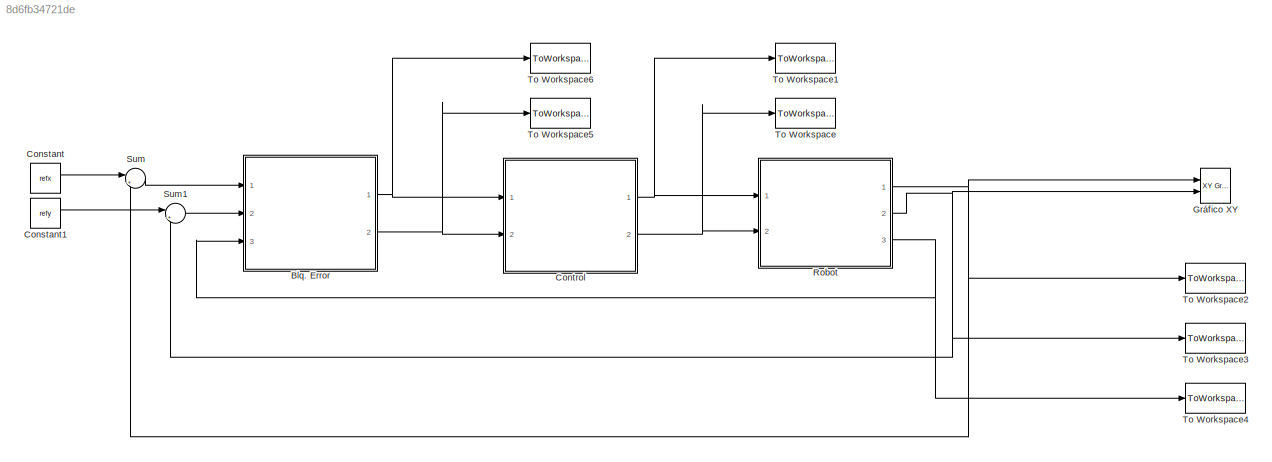
MODEL slx_8d6fb34721de
KIND model
CONFIG AbsTol = auto
CONFIG EnableMultiTasking = off
CONFIG FixedStep = Ts
CONFIG MaxStep = auto
CONFIG MinStep = auto
CONFIG RelTol = 1e-3
CONFIG SampleTimeConstraint = Unconstrained
CONFIG Solver = ode3
CONFIG SolverName = ode3
CONFIG StartTime = 0.0
CONFIG StopTime = 100.0
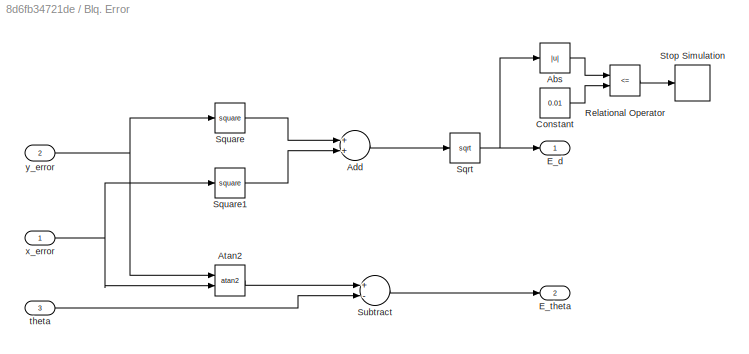
BLOCK [SubSystem] Blq. Error
  Ports = [3, 2]
  RequestExecContextInheritance = off
BLOCK [Abs] Blq. Error/Abs
  SaturateOnIntegerOverflow = off
BLOCK [Sum] Blq. Error/Add
  InputSameDT = off
  OutDataTypeStr = Inherit: Inherit via internal rule
  Ports = [2, 1]
  SaturateOnIntegerOverflow = off
BLOCK [Trigonometry] Blq. Error/Atan2
  Operator = atan2
  Ports = [2, 1]
BLOCK [Constant] Blq. Error/Constant
  Value = 0.01
BLOCK [Outport] Blq. Error/E_d
  IconDisplay = Port number
BLOCK [Outport] Blq. Error/E_theta
  IconDisplay = Port number
  OutMax = [pi]
  OutMin = [-pi]
  Port = 2
BLOCK [RelationalOperator] Blq. Error/Relational Operator
  InputSameDT = off
  Operator = <=
  OutDataTypeStr = boolean
  Ports = [2, 1]
  RndMeth = Simplest
BLOCK [Sqrt] Blq. Error/Sqrt
BLOCK [Math] Blq. Error/Square
  Operator = square
  Ports = [1, 1]
BLOCK [Math] Blq. Error/Square1
  Operator = square
  Ports = [1, 1]
BLOCK [Stop] Blq. Error/Stop Simulation
BLOCK [Sum] Blq. Error/Subtract
  InputSameDT = off
  Inputs = +-
  OutDataTypeStr = Inherit: Inherit via internal rule
  Ports = [2, 1]
  SaturateOnIntegerOverflow = off
BLOCK [Inport] Blq. Error/theta
  IconDisplay = Port number
  Port = 3
BLOCK [Inport] Blq. Error/x_error
  IconDisplay = Port number
BLOCK [Inport] Blq. Error/y_error
  IconDisplay = Port number
  Port = 2
BLOCK [Constant] Constant
  Value = refx
BLOCK [Constant] Constant1
  Value = refy
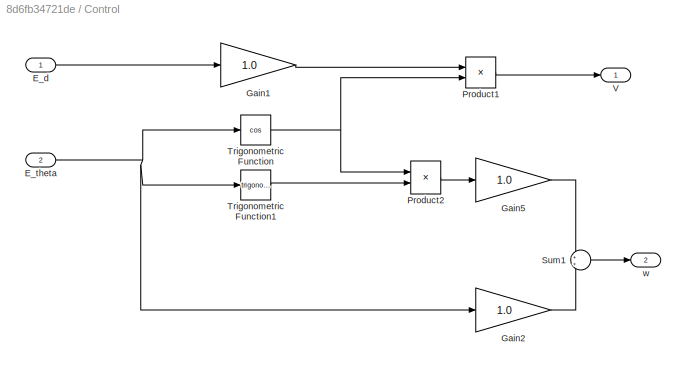
BLOCK [SubSystem] Control
  Ports = [2, 2]
  RequestExecContextInheritance = off
BLOCK [Inport] Control/E_d
  IconDisplay = Port number
BLOCK [Inport] Control/E_theta
  IconDisplay = Port number
  Port = 2
BLOCK [Gain] Control/Gain1
  Gain = 1.0
  OutDataTypeStr = Inherit: Inherit via internal rule
  ParamDataTypeStr = Inherit: Inherit via internal rule
  SaturateOnIntegerOverflow = off
BLOCK [Gain] Control/Gain2
  Gain = 1.0
  OutDataTypeStr = Inherit: Inherit via internal rule
  ParamDataTypeStr = Inherit: Inherit via internal rule
  SaturateOnIntegerOverflow = off
BLOCK [Gain] Control/Gain5
  Gain = 1.0
  OutDataTypeStr = Inherit: Inherit via internal rule
  ParamDataTypeStr = Inherit: Inherit via internal rule
  SaturateOnIntegerOverflow = off
BLOCK [Product] Control/Product1
  InputSameDT = off
  OutDataTypeStr = Inherit: Inherit via internal rule
  Ports = [2, 1]
  RndMeth = Floor
  SaturateOnIntegerOverflow = off
BLOCK [Product] Control/Product2
  InputSameDT = off
  OutDataTypeStr = Inherit: Inherit via internal rule
  Ports = [2, 1]
  RndMeth = Floor
  SaturateOnIntegerOverflow = off
BLOCK [Sum] Control/Sum1
  IconShape = round
  InputSameDT = off
  OutDataTypeStr = Inherit: Inherit via internal rule
  Ports = [2, 1]
  SaturateOnIntegerOverflow = off
BLOCK [Trigonometry] Control/Trigonometric Function
  Operator = cos
  Ports = [1, 1]
BLOCK [Trigonometry] Control/Trigonometric Function1
  Ports = [1, 1]
BLOCK [Outport] Control/V
  IconDisplay = Port number
BLOCK [Outport] Control/w
  IconDisplay = Port number
  Port = 2
BLOCK [Reference] Gráfico XY  REF=simulink/Sinks/XY Graph
  Ports = [2]
  SourceBlock = simulink/Sinks/XY Graph
  SourceProductBaseCode = SL
  SourceProductName = Simulink
  SourceType = XY scope.
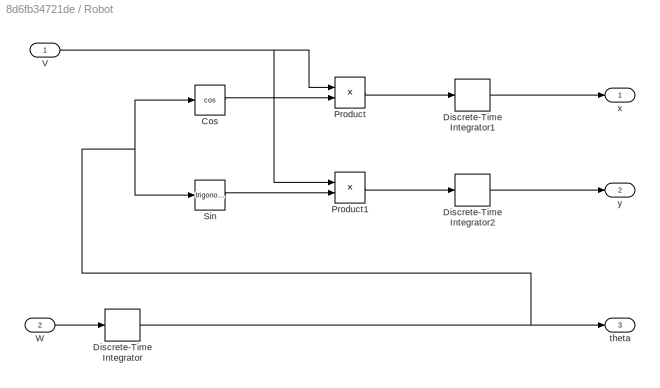
BLOCK [SubSystem] Robot
  Ports = [2, 3]
  RequestExecContextInheritance = off
BLOCK [Trigonometry] Robot/Cos
  Operator = cos
  Ports = [1, 1]
BLOCK [DiscreteIntegrator] Robot/Discrete-Time Integrator
  ICPrevOutput = DiscIntNeverNeededParam
  ICPrevScaledInput = DiscIntNeverNeededParam
  InitialConditionSetting = Auto
  Ports = [1, 1]
  SampleTime = -1
BLOCK [DiscreteIntegrator] Robot/Discrete-Time Integrator1
  ICPrevOutput = DiscIntNeverNeededParam
  ICPrevScaledInput = DiscIntNeverNeededParam
  InitialCondition = -4
  InitialConditionSetting = Auto
  Ports = [1, 1]
  SampleTime = -1
BLOCK [DiscreteIntegrator] Robot/Discrete-Time Integrator2
  ICPrevOutput = DiscIntNeverNeededParam
  ICPrevScaledInput = DiscIntNeverNeededParam
  InitialCondition = -4
  InitialConditionSetting = Auto
  Ports = [1, 1]
  SampleTime = -1
BLOCK [Product] Robot/Product
  InputSameDT = off
  OutDataTypeStr = Inherit: Inherit via internal rule
  Ports = [2, 1]
  RndMeth = Floor
  SaturateOnIntegerOverflow = off
BLOCK [Product] Robot/Product1
  InputSameDT = off
  OutDataTypeStr = Inherit: Inherit via internal rule
  Ports = [2, 1]
  RndMeth = Floor
  SaturateOnIntegerOverflow = off
BLOCK [Trigonometry] Robot/Sin
  Ports = [1, 1]
BLOCK [Inport] Robot/V
  IconDisplay = Port number
BLOCK [Inport] Robot/W
  IconDisplay = Port number
  Port = 2
BLOCK [Outport] Robot/theta
  IconDisplay = Port number
  Port = 3
BLOCK [Outport] Robot/x
  IconDisplay = Port number
BLOCK [Outport] Robot/y
  IconDisplay = Port number
  Port = 2
BLOCK [Sum] Sum
  IconShape = round
  InputSameDT = off
  Inputs = |+-
  OutDataTypeStr = Inherit: Inherit via internal rule
  Ports = [2, 1]
  SaturateOnIntegerOverflow = off
BLOCK [Sum] Sum1
  IconShape = round
  InputSameDT = off
  Inputs = |+-
  OutDataTypeStr = Inherit: Inherit via internal rule
  Ports = [2, 1]
  SaturateOnIntegerOverflow = off
BLOCK [ToWorkspace] To Workspace
  FixptAsFi = on
  MaxDataPoints = inf
  Ports = [1]
  SampleTime = -1
  Save2DSignal = 3-D array (concatenate along third dimension)
  SaveFormat = Structure With Time
  VariableName = W
BLOCK [ToWorkspace] To Workspace1
  FixptAsFi = on
  MaxDataPoints = inf
  Ports = [1]
  SampleTime = -1
  Save2DSignal = 3-D array (concatenate along third dimension)
  SaveFormat = Structure With Time
  VariableName = V
BLOCK [ToWorkspace] To Workspace2
  FixptAsFi = on
  MaxDataPoints = inf
  Ports = [1]
  SampleTime = -1
  Save2DSignal = 3-D array (concatenate along third dimension)
  SaveFormat = Structure With Time
  VariableName = salida_x
BLOCK [ToWorkspace] To Workspace3
  FixptAsFi = on
  MaxDataPoints = inf
  Ports = [1]
  SampleTime = -1
  Save2DSignal = 3-D array (concatenate along third dimension)
  SaveFormat = Structure With Time
  VariableName = salida_y
BLOCK [ToWorkspace] To Workspace4
  FixptAsFi = on
  MaxDataPoints = inf
  Ports = [1]
  SampleTime = -1
  Save2DSignal = 3-D array (concatenate along third dimension)
  SaveFormat = Structure With Time
  VariableName = salida_theta
BLOCK [ToWorkspace] To Workspace5
  FixptAsFi = on
  MaxDataPoints = inf
  Ports = [1]
  SampleTime = -1
  Save2DSignal = 3-D array (concatenate along third dimension)
  SaveFormat = Structure With Time
  VariableName = E_theta
BLOCK [ToWorkspace] To Workspace6
  FixptAsFi = on
  MaxDataPoints = inf
  Ports = [1]
  SampleTime = -1
  Save2DSignal = 3-D array (concatenate along third dimension)
  SaveFormat = Structure With Time
  VariableName = E_d
LINE Blq. Error/Abs:1 -> Blq. Error/Relational Operator:1
LINE Blq. Error/Add:1 -> Blq. Error/Sqrt:1
LINE Blq. Error/Atan2:1 -> Blq. Error/Subtract:1
LINE Blq. Error/Constant:1 -> Blq. Error/Relational Operator:2
LINE Blq. Error/Relational Operator:1 -> Blq. Error/Stop Simulation:1
NET Blq. Error/Sqrt:1 -> Blq. Error/Abs:1, Blq. Error/E_d:1
LINE Blq. Error/Square1:1 -> Blq. Error/Add:2
LINE Blq. Error/Square:1 -> Blq. Error/Add:1
LINE Blq. Error/Subtract:1 -> Blq. Error/E_theta:1
LINE Blq. Error/theta:1 -> Blq. Error/Subtract:2
NET Blq. Error/x_error:1 -> Blq. Error/Atan2:2, Blq. Error/Square1:1
NET Blq. Error/y_error:1 -> Blq. Error/Atan2:1, Blq. Error/Square:1
NET Blq. Error:1 -> Control:1, To Workspace6:1
NET Blq. Error:2 -> Control:2, To Workspace5:1
LINE Constant1:1 -> Sum1:1
LINE Constant:1 -> Sum:1
LINE Control/E_d:1 -> Control/Gain1:1
NET Control/E_theta:1 -> Control/Gain2:1, Control/Trigonometric Function1:1, Control/Trigonometric Function:1
LINE Control/Gain1:1 -> Control/Product1:1
LINE Control/Gain2:1 -> Control/Sum1:2
LINE Control/Gain5:1 -> Control/Sum1:1
LINE Control/Product1:1 -> Control/V:1
LINE Control/Product2:1 -> Control/Gain5:1
LINE Control/Sum1:1 -> Control/w:1
LINE Control/Trigonometric Function1:1 -> Control/Product2:2
NET Control/Trigonometric Function:1 -> Control/Product1:2, Control/Product2:1
NET Control:1 -> Robot:1, To Workspace1:1
NET Control:2 -> Robot:2, To Workspace:1
LINE Robot/Cos:1 -> Robot/Product:2
LINE Robot/Discrete-Time Integrator1:1 -> Robot/x:1
LINE Robot/Discrete-Time Integrator2:1 -> Robot/y:1
NET Robot/Discrete-Time Integrator:1 -> Robot/Cos:1, Robot/Sin:1, Robot/theta:1
LINE Robot/Product1:1 -> Robot/Discrete-Time Integrator2:1
LINE Robot/Product:1 -> Robot/Discrete-Time Integrator1:1
LINE Robot/Sin:1 -> Robot/Product1:2
NET Robot/V:1 -> Robot/Product1:1, Robot/Product:1
LINE Robot/W:1 -> Robot/Discrete-Time Integrator:1
NET Robot:1 -> Gráfico XY:1, Sum:2, To Workspace2:1
NET Robot:2 -> Gráfico XY:2, Sum1:2, To Workspace3:1
NET Robot:3 -> Blq. Error:3, To Workspace4:1
LINE Sum1:1 -> Blq. Error:2
LINE Sum:1 -> Blq. Error:1
note: NET lines group one-source signal fan-out (src -> all destinations, sorted); 1:1 wires keep LINE
